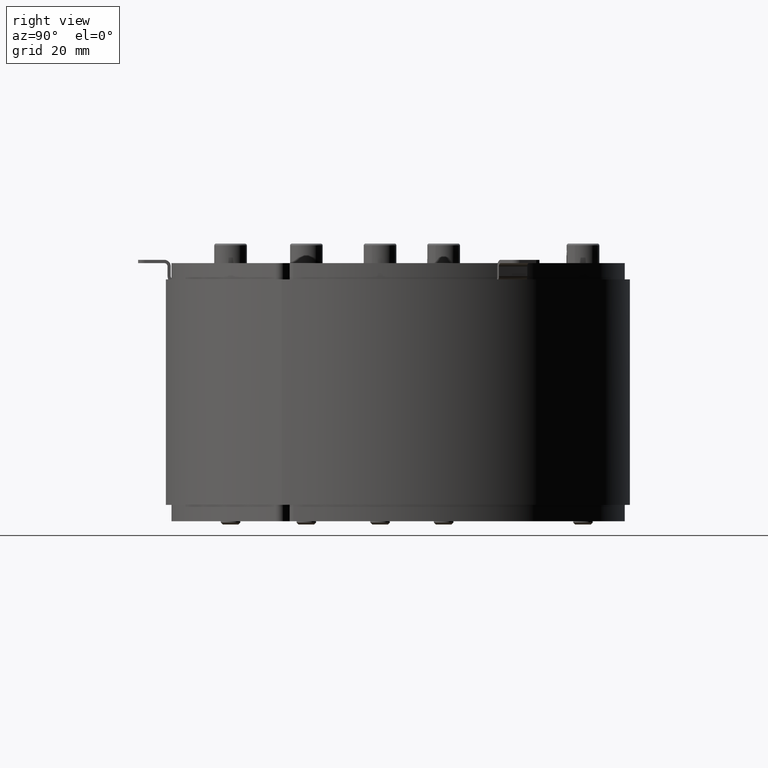
[diagram: clean part render]
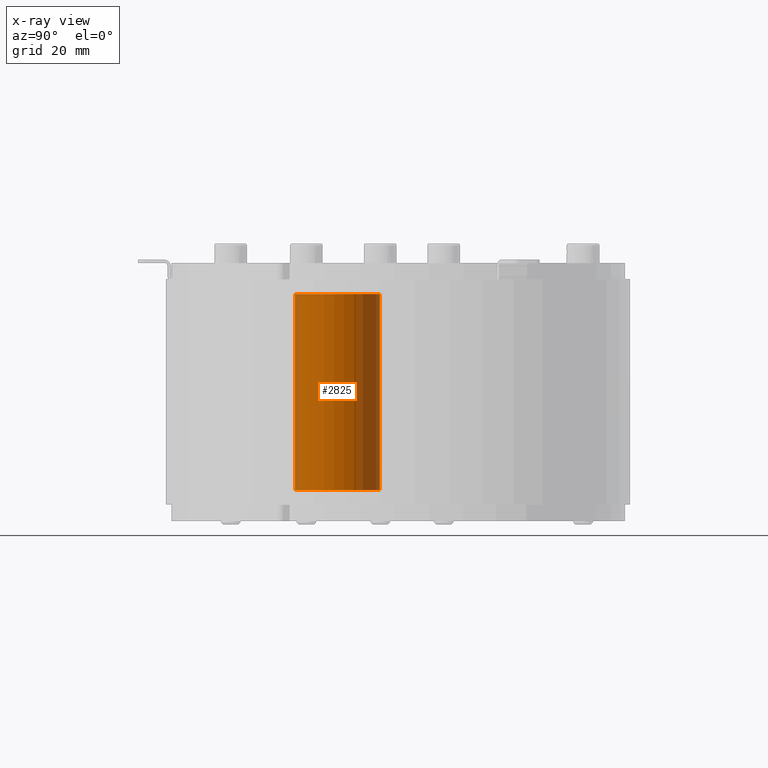
[diagram: x-ray — body ghosted, one internal face saturated and labeled with its STEP entity id]
A machine part, right view, then the same camera in x-ray: the body is ghosted and one INTERNAL B-rep face — a face not visible from any outside direction — is saturated and labeled: STEP entity #2825.
In plain terms, the highlighted cylindrical surface (bore or boss wall) has radius 13 mm, axis along (0, 0, 1).
Its self-contained STEP definition (entity closure, byte-faithful):
#505=FACE_OUTER_BOUND('',#690,.T.);
#690=EDGE_LOOP('',(#2596,#2597,#2598,#2599));
#913=LINE('',#5097,#1135);
#1135=VECTOR('',#4234,13.);
#1268=CIRCLE('',#3359,13.);
#1269=CIRCLE('',#3361,13.);
#1504=VERTEX_POINT('',#5092);
#1505=VERTEX_POINT('',#5095);
#1868=EDGE_CURVE('',#1504,#1504,#1268,.T.);
#1869=EDGE_CURVE('',#1505,#1505,#1269,.T.);
#1870=EDGE_CURVE('',#1505,#1504,#913,.T.);
#2596=ORIENTED_EDGE('',*,*,#1869,.F.);
#2597=ORIENTED_EDGE('',*,*,#1870,.T.);
#2598=ORIENTED_EDGE('',*,*,#1868,.F.);
#2599=ORIENTED_EDGE('',*,*,#1870,.F.);
#2663=CYLINDRICAL_SURFACE('',#3360,13.);
#2825=ADVANCED_FACE('',(#505),#2663,.T.);
#3359=AXIS2_PLACEMENT_3D('',#5093,#4228,#4229);
#3360=AXIS2_PLACEMENT_3D('',#5094,#4230,#4231);
#3361=AXIS2_PLACEMENT_3D('',#5096,#4232,#4233);
#4228=DIRECTION('center_axis',(0.,0.,-1.));
#4229=DIRECTION('ref_axis',(-1.,0.,0.));
#4230=DIRECTION('center_axis',(0.,0.,1.));
#4231=DIRECTION('ref_axis',(-1.,0.,0.));
#4232=DIRECTION('center_axis',(0.,0.,1.));
#4233=DIRECTION('ref_axis',(-1.,0.,0.));
#4234=DIRECTION('',(0.,0.,-1.));
#5092=CARTESIAN_POINT('',(13.,1.59204083889156E-15,-30.));
#5093=CARTESIAN_POINT('Origin',(0.,0.,-30.));
#5094=CARTESIAN_POINT('Origin',(0.,0.,0.));
#5095=CARTESIAN_POINT('',(13.,1.59204083889156E-15,30.));
#5096=CARTESIAN_POINT('Origin',(0.,0.,30.));
#5097=CARTESIAN_POINT('',(13.,1.59204083889156E-15,0.));